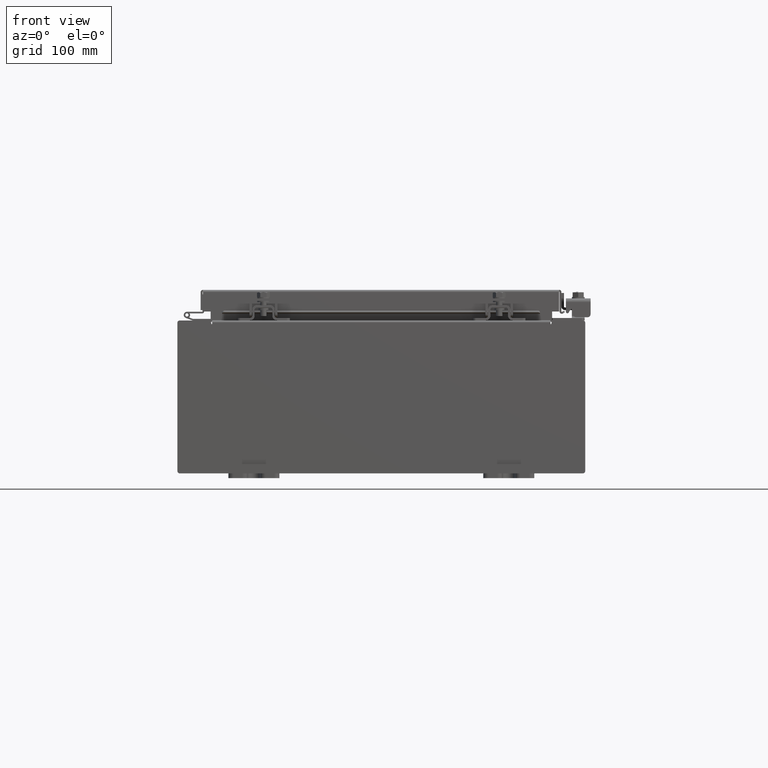
[diagram: clean part render]
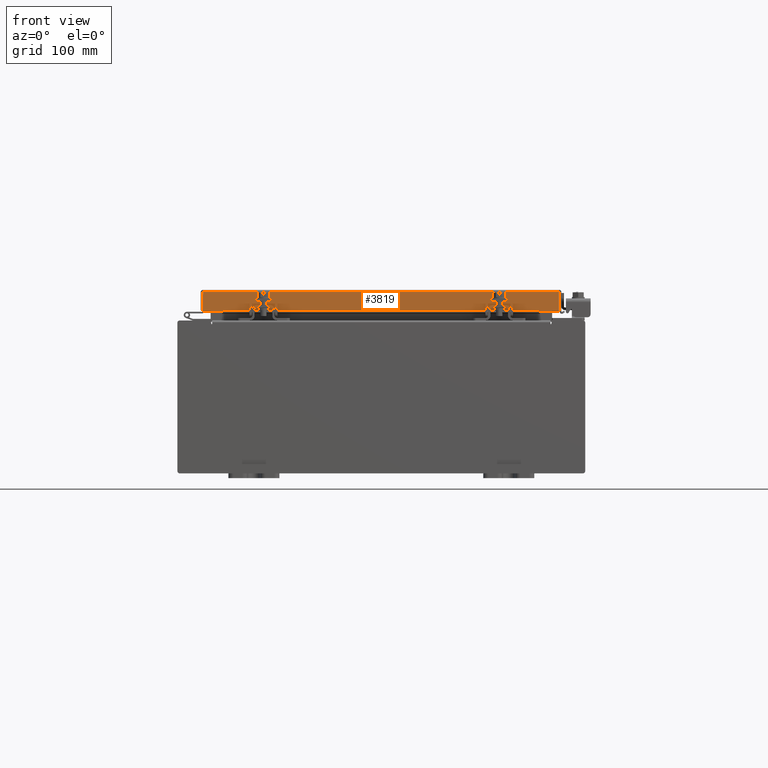
[diagram: same view with one face highlighted and labeled with its STEP entity id]
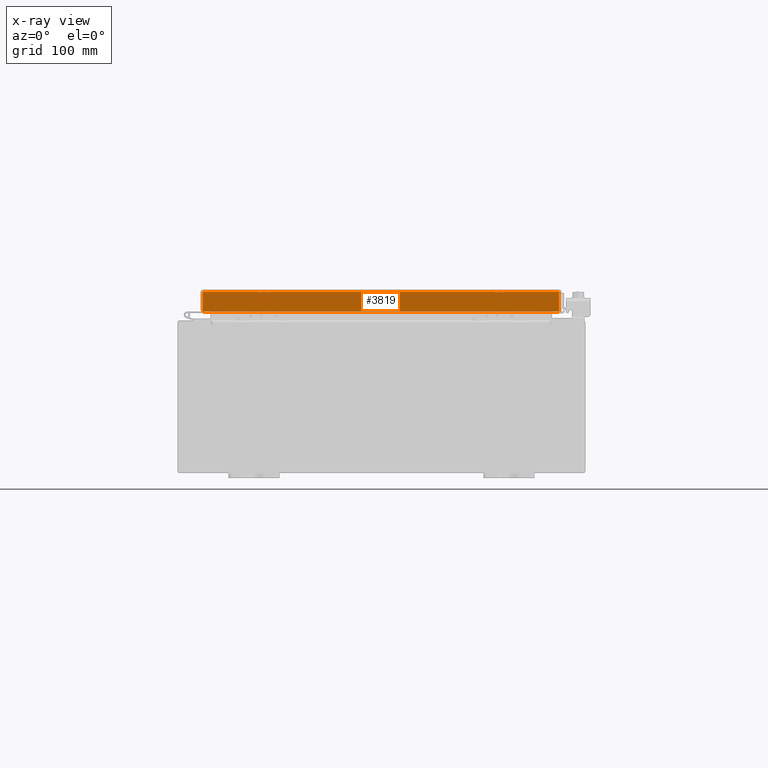
[diagram: x-ray of the same camera — body ghosted, the highlighted face saturated]
A machine part, front view. The second image highlights one B-rep face of the part: STEP entity #3819.
The next image is the same camera in x-ray: the body ghosted, the highlighted face saturated — about 0% of this face is hidden behind the body in this view.
In plain terms, the highlighted planar face has unit normal (-0, 1, -0).
Its self-contained STEP definition (entity closure, byte-faithful):
#1140 = DIRECTION ( 'NONE',  ( -3.535949605205717500E-031, 1.000000000000000000, -2.818880942772360100E-015 ) ) ;
#1265 = VERTEX_POINT ( 'NONE', #24970 ) ;
#2015 = LINE ( 'NONE', #8506, #19470 ) ;
#3259 = VERTEX_POINT ( 'NONE', #20162 ) ;
#3819 = ADVANCED_FACE ( 'NONE', ( #14419 ), #14735, .F. ) ;
#3966 = DIRECTION ( 'NONE',  ( 0.0000000000000000000, -2.818880942772360100E-015, -1.000000000000000000 ) ) ;
#4011 = CARTESIAN_POINT ( 'NONE',  ( 6.989157864376271500, -9.093999999999999400, -0.07469999999999978000 ) ) ;
#4298 = VECTOR ( 'NONE', #15229, 39.37007874015748100 ) ;
#4348 = VERTEX_POINT ( 'NONE', #19687 ) ;
#5003 = VERTEX_POINT ( 'NONE', #22997 ) ;
#5056 = CARTESIAN_POINT ( 'NONE',  ( -6.989157864376266200, -9.094000000000001200, -0.8499999999999978700 ) ) ;
#5653 = AXIS2_PLACEMENT_3D ( 'NONE', #10140, #1140, #17034 ) ;
#6635 = EDGE_CURVE ( 'NONE', #4348, #16975, #28538, .T. ) ;
#7528 = EDGE_LOOP ( 'NONE', ( #22067, #21127, #20299, #22501, #24586, #25111 ) ) ;
#8506 = CARTESIAN_POINT ( 'NONE',  ( -6.989157864376266200, -9.093999999999999400, 2.589571694958342300E-014 ) ) ;
#8777 = EDGE_CURVE ( 'NONE', #5003, #3259, #16851, .T. ) ;
#9969 = EDGE_CURVE ( 'NONE', #27074, #4348, #22933, .T. ) ;
#10140 = CARTESIAN_POINT ( 'NONE',  ( 3.215592570974079100E-030, -9.093999999999999400, 2.589571694958342300E-014 ) ) ;
#10404 = CARTESIAN_POINT ( 'NONE',  ( 7.078000000000002100, -9.094000000000001200, -0.8499999999999996400 ) ) ;
#11240 = CARTESIAN_POINT ( 'NONE',  ( 7.078000000000002100, -9.093999999999999400, -0.08770000000000007000 ) ) ;
#12464 = CARTESIAN_POINT ( 'NONE',  ( 6.239157864376270600, -9.093999999999997600, -0.8500000000000007500 ) ) ;
#12780 = EDGE_CURVE ( 'NONE', #3259, #27074, #14232, .T. ) ;
#14232 = LINE ( 'NONE', #10404, #25702 ) ;
#14419 = FACE_OUTER_BOUND ( 'NONE', #7528, .T. ) ;
#14735 = PLANE ( 'NONE',  #5653 ) ;
#15114 = LINE ( 'NONE', #11240, #27283 ) ;
#15229 = DIRECTION ( 'NONE',  ( -1.000000000000000000, -4.379057701015054300E-047, 1.254380613084042800E-016 ) ) ;
#15303 = CARTESIAN_POINT ( 'NONE',  ( 6.239157864376270600, -9.093999999999997600, -0.8500000000000007500 ) ) ;
#16649 = EDGE_CURVE ( 'NONE', #1265, #16975, #2015, .T. ) ;
#16851 = LINE ( 'NONE', #4011, #22218 ) ;
#16975 = VERTEX_POINT ( 'NONE', #5056 ) ;
#17034 = DIRECTION ( 'NONE',  ( 0.0000000000000000000, 2.818880942772360100E-015, 1.000000000000000000 ) ) ;
#17732 = DIRECTION ( 'NONE',  ( -0.0000000000000000000, -2.818880942772360100E-015, -1.000000000000000000 ) ) ;
#19470 = VECTOR ( 'NONE', #3966, 39.37007874015748100 ) ;
#19600 = DIRECTION ( 'NONE',  ( -1.000000000000000000, -4.379057701015054300E-047, 1.254380613084042800E-016 ) ) ;
#19687 = CARTESIAN_POINT ( 'NONE',  ( -6.239157864376266200, -9.093999999999997600, -0.8500000000000007500 ) ) ;
#20162 = CARTESIAN_POINT ( 'NONE',  ( 6.989157864376271500, -9.094000000000001200, -0.8499999999999996400 ) ) ;
#20299 = ORIENTED_EDGE ( 'NONE', *, *, #6635, .F. ) ;
#21127 = ORIENTED_EDGE ( 'NONE', *, *, #16649, .T. ) ;
#22067 = ORIENTED_EDGE ( 'NONE', *, *, #29155, .F. ) ;
#22218 = VECTOR ( 'NONE', #17732, 39.37007874015748100 ) ;
#22501 = ORIENTED_EDGE ( 'NONE', *, *, #9969, .F. ) ;
#22933 = LINE ( 'NONE', #15303, #28960 ) ;
#22997 = CARTESIAN_POINT ( 'NONE',  ( 6.989157864376271500, -9.093999999999999400, -0.08770000000000007000 ) ) ;
#24586 = ORIENTED_EDGE ( 'NONE', *, *, #12780, .F. ) ;
#24970 = CARTESIAN_POINT ( 'NONE',  ( -6.989157864376266200, -9.093999999999999400, -0.08770000000000007000 ) ) ;
#25111 = ORIENTED_EDGE ( 'NONE', *, *, #8777, .F. ) ;
#25702 = VECTOR ( 'NONE', #19600, 39.37007874015748100 ) ;
#26632 = CARTESIAN_POINT ( 'NONE',  ( 7.078000000000002100, -9.094000000000001200, -0.8499999999999996400 ) ) ;
#27074 = VERTEX_POINT ( 'NONE', #12464 ) ;
#27256 = DIRECTION ( 'NONE',  ( 1.000000000000000000, 3.535949605205718300E-031, -9.638176865770766400E-046 ) ) ;
#27283 = VECTOR ( 'NONE', #27256, 39.37007874015748100 ) ;
#28538 = LINE ( 'NONE', #26632, #4298 ) ;
#28960 = VECTOR ( 'NONE', #28996, 39.37007874015748100 ) ;
#28996 = DIRECTION ( 'NONE',  ( -1.000000000000000000, 0.0000000000000000000, 0.0000000000000000000 ) ) ;
#29155 = EDGE_CURVE ( 'NONE', #1265, #5003, #15114, .T. ) ;